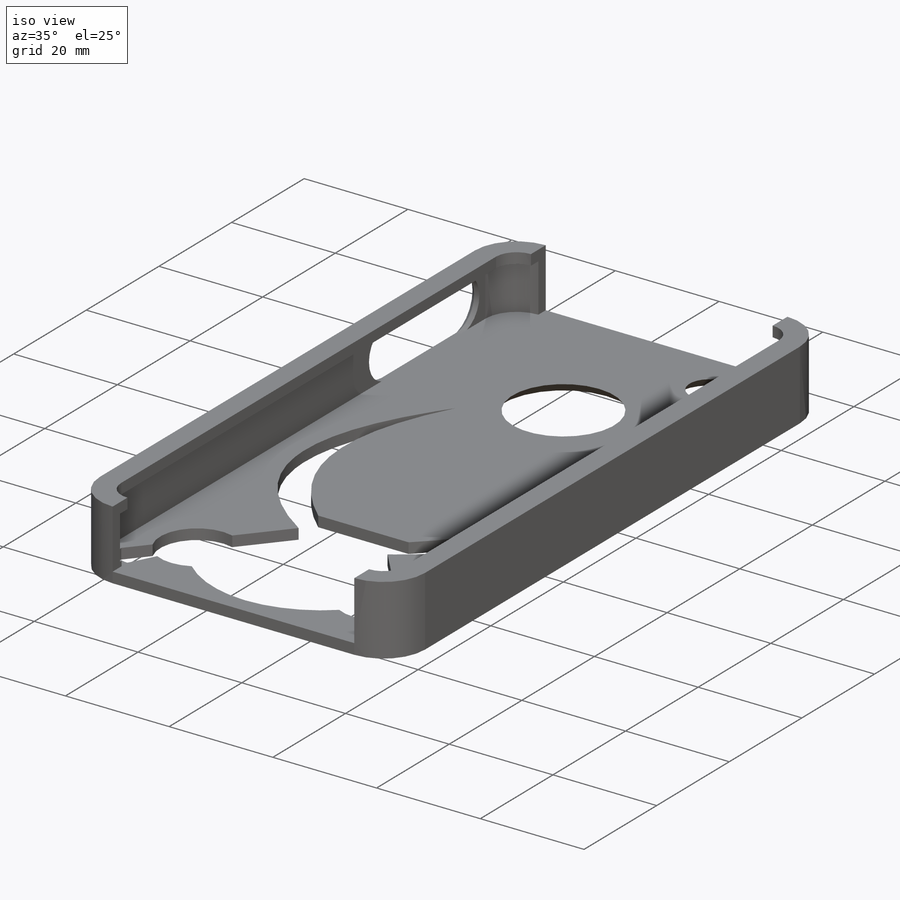
[diagram: iso view]
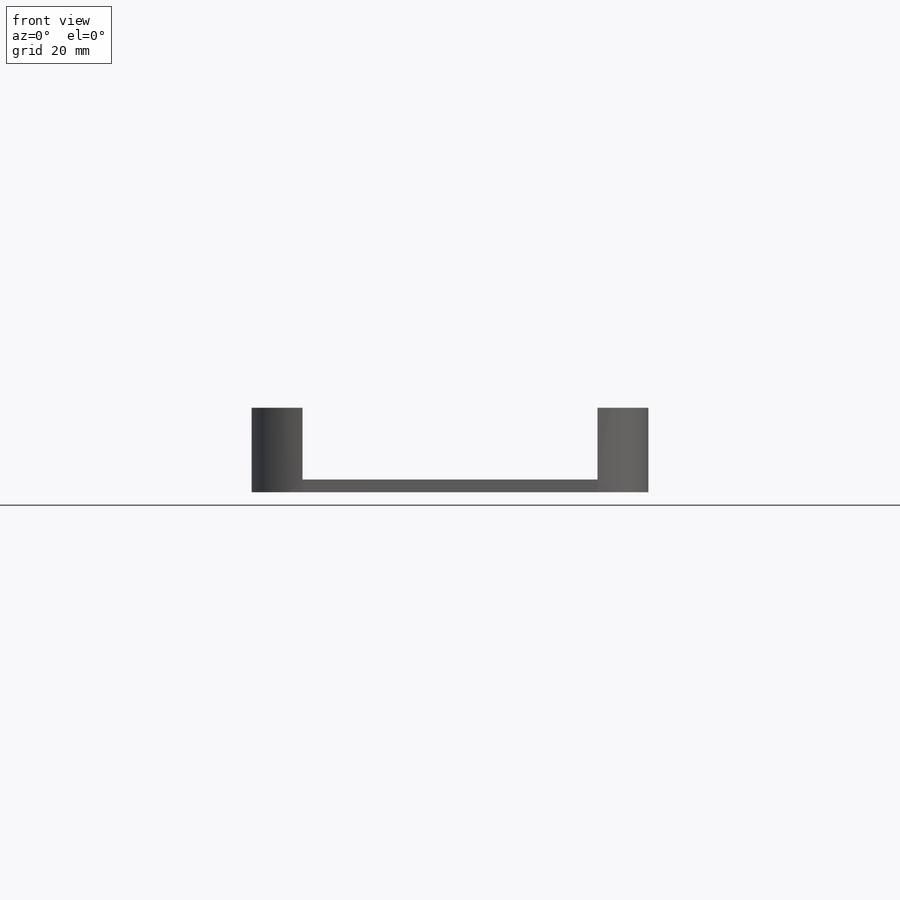
[diagram: front view]
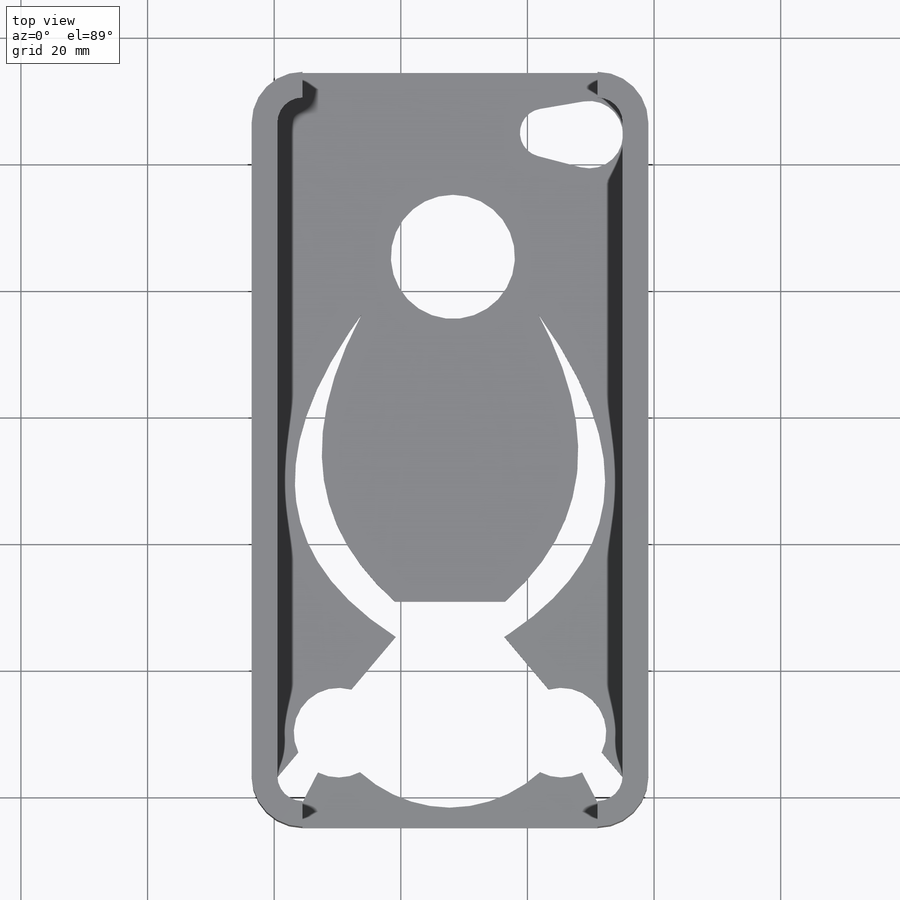
[diagram: top view]
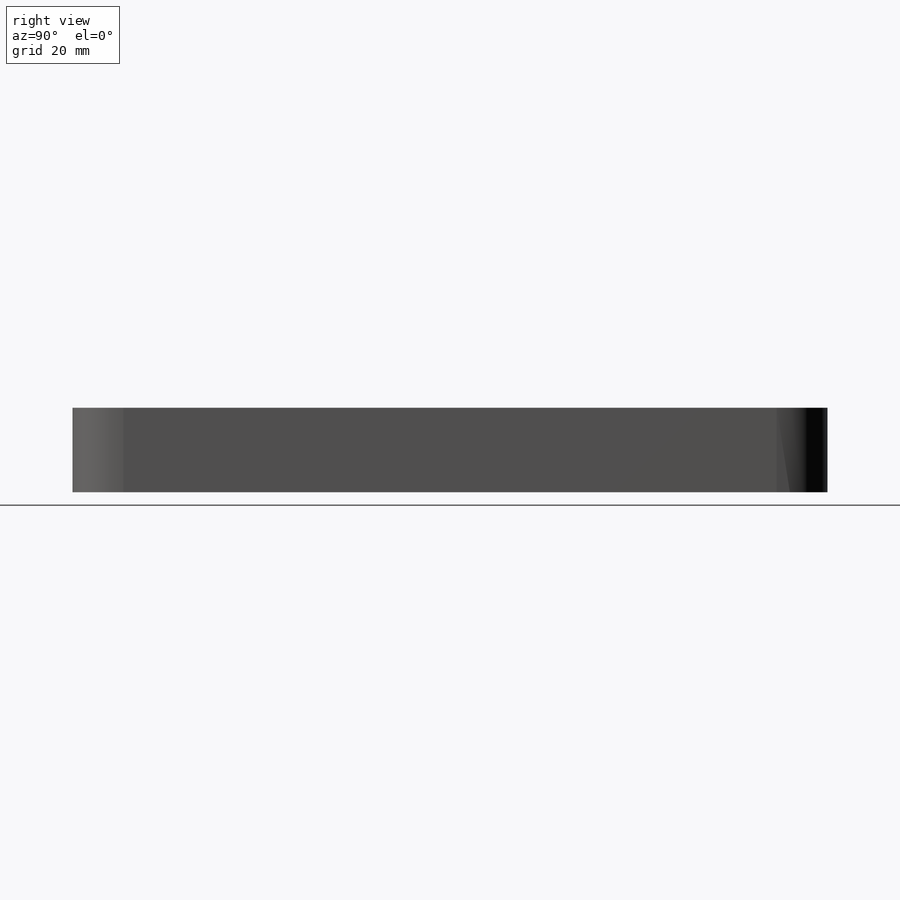
[diagram: right view]
SOLIDWORKS PART (.sldprt)
format: sldprt  version: not decoded by parser v0  size: 427,520 bytes
history: native  units: mm
features: sketch x8, cut_extrude x5, extrude x3, chamfer x2, material x1, plane x1, shell x1 (+11 scaffold rows collapsed)
feature tree (32):
  scaffold x11  (default folders/planes/origin — collapsed)
  material  "ABS"
  plane  "Plane1"
  sketch  "Sketch1"  dims[D1=2.032mm D2=2.032mm]
  extrude  "Boss-Extrude1"  Depth=2.032mm
  shell  "Shell1"  Thickness=2.032mm
  sketch  "Sketch2"
  cut_extrude  "Cut-Extrude1"  Depth=2.032mm
  sketch  "Sketch3"  dims[D1=2.032mm D2=2.032mm]
  extrude  "Boss-Extrude2"  Depth=2.032mm
  sketch  "Sketch4"
  cut_extrude  "Cut-Extrude2"  Depth=2.032mm
  sketch  "Sketch5"
  cut_extrude  "Cut-Extrude3"  Depth=2.032mm
  sketch  "Sketch6"
  cut_extrude  "Cut-Extrude4"  Depth=2.032mm
  chamfer  "Chamfer1"  Distance=2.032mm Angle=45deg
  chamfer  "Chamfer2"  Distance=1.016mm Angle=45deg
  sketch  "Sketch7"  dims[D1=0.45mm]
  extrude  "Boss-Extrude3"  Depth=0.95mm
  sketch  "Sketch8"
  cut_extrude  "Cut-Extrude5"  Depth=2.032mm
decode coverage: 14 of 19 modeling features carry decoded parameters
note: suppression state not decoded; provenance and decode notes live in map.json
